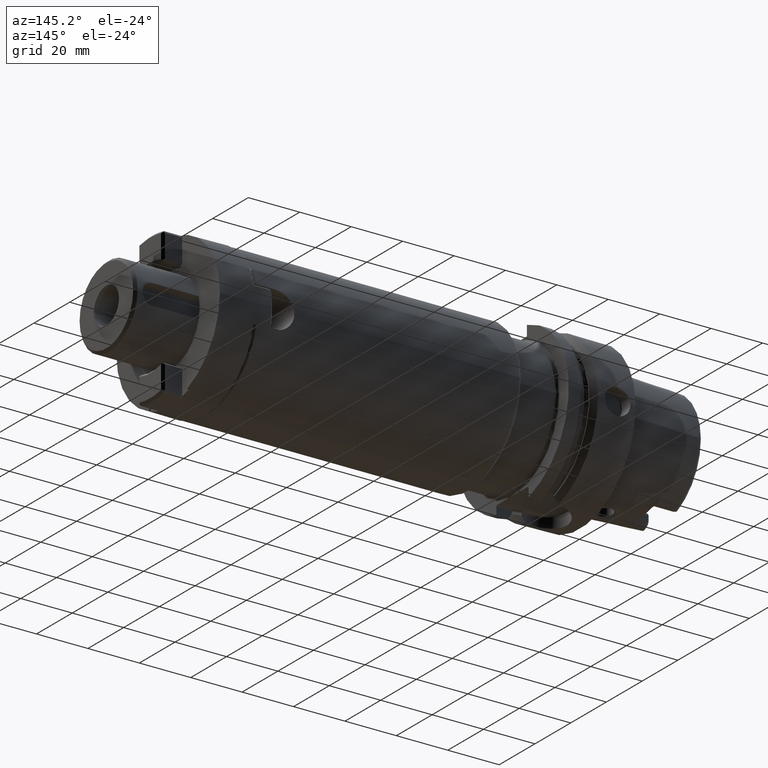
[diagram: clean part render]
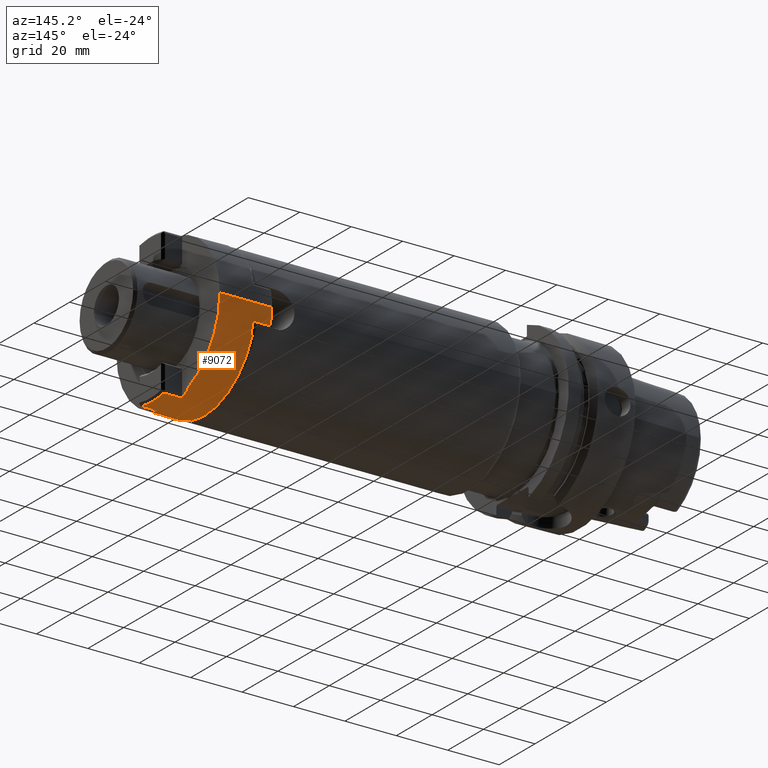
[diagram: same view with one face highlighted and labeled with its STEP entity id]
A machine part, auxiliary view. The second image highlights one B-rep face of the part: STEP entity #9072.
In plain terms, the highlighted cylindrical surface (partial cylindrical patch) has radius 29 mm, axis along (1, 0, 0).
Its self-contained STEP definition (entity closure, byte-faithful):
#7512=DIRECTION('',(1.342815094146E-12,1.E0,-1.127559325998E-12));
#7513=VECTOR('',#7512,2.006250000003E1);
#7514=CARTESIAN_POINT('',(2.899999999997E1,-6.062500000027E0,
2.262521045359E-11));
#7515=LINE('',#7514,#7513);
#7753=DIRECTION('',(6.185587793484E-14,1.E0,0.E0));
#7754=VECTOR('',#7753,6.6625E0);
#7755=CARTESIAN_POINT('',(-2.831474527892E1,-6.0625E0,6.266992882562E0));
#7756=LINE('',#7755,#7754);
#7757=CARTESIAN_POINT('',(0.E0,-6.0625E0,0.E0));
#7758=DIRECTION('',(0.E0,-1.E0,0.E0));
#7759=DIRECTION('',(-9.763705268592E-1,0.E0,2.161032028470E-1));
#7760=AXIS2_PLACEMENT_3D('',#7757,#7758,#7759);
#7762=DIRECTION('',(-1.319971477221E-12,1.E0,1.457055303772E-12));
#7763=VECTOR('',#7762,2.006250000003E1);
#7764=CARTESIAN_POINT('',(-2.899999999997E1,-6.062500000026E0,
-2.923217120667E-11));
#7765=LINE('',#7764,#7763);
#7766=CARTESIAN_POINT('',(0.E0,1.4E1,0.E0));
#7767=DIRECTION('',(0.E0,1.E0,0.E0));
#7768=DIRECTION('',(-1.E0,0.E0,0.E0));
#7769=AXIS2_PLACEMENT_3D('',#7766,#7767,#7768);
#7771=DIRECTION('',(0.E0,1.E0,0.E0));
#7772=VECTOR('',#7771,6.E-1);
#7773=CARTESIAN_POINT('',(-1.05725E1,1.34E1,2.700411531137E1));
#7774=LINE('',#7773,#7772);
#7775=DIRECTION('',(-2.286429389008E-9,-1.E0,1.033025871003E-8));
#7776=VECTOR('',#7775,6.662499859018E0);
#7777=CARTESIAN_POINT('',(-6.266992867329E0,2.006249985902E1,2.831474521009E1));
#7778=LINE('',#7777,#7776);
#7779=DIRECTION('',(2.256645089311E-9,9.999999999959E-1,-2.869937073831E-6));
#7780=VECTOR('',#7779,6.662519618770E0);
#7781=CARTESIAN_POINT('',(6.266992882562E0,1.34E1,2.831474527892E1));
#7782=LINE('',#7781,#7780);
#7783=DIRECTION('',(0.E0,1.E0,-1.184237892934E-14));
#7784=VECTOR('',#7783,6.E-1);
#7785=CARTESIAN_POINT('',(1.05725E1,1.34E1,2.700411531137E1));
#7786=LINE('',#7785,#7784);
#7787=CARTESIAN_POINT('',(0.E0,1.4E1,0.E0));
#7788=DIRECTION('',(0.E0,1.E0,0.E0));
#7789=DIRECTION('',(3.645689655172E-1,0.E0,9.311763900474E-1));
#7790=AXIS2_PLACEMENT_3D('',#7787,#7788,#7789);
#7792=CARTESIAN_POINT('',(0.E0,-6.0625E0,0.E0));
#7793=DIRECTION('',(0.E0,-1.E0,0.E0));
#7794=DIRECTION('',(1.E0,0.E0,0.E0));
#7795=AXIS2_PLACEMENT_3D('',#7792,#7793,#7794);
#7797=DIRECTION('',(0.E0,-1.E0,0.E0));
#7798=VECTOR('',#7797,6.6625E0);
#7799=CARTESIAN_POINT('',(2.831474527892E1,6.E-1,6.266992882562E0));
#7800=LINE('',#7799,#7798);
#7801=DIRECTION('',(0.E0,1.E0,0.E0));
#7802=VECTOR('',#7801,6.E-1);
#7803=CARTESIAN_POINT('',(2.700411531137E1,0.E0,1.05725E1));
#7804=LINE('',#7803,#7802);
#7805=CARTESIAN_POINT('',(0.E0,0.E0,0.E0));
#7806=DIRECTION('',(0.E0,-1.E0,0.E0));
#7807=DIRECTION('',(9.311763900474E-1,0.E0,3.645689655172E-1));
#7808=AXIS2_PLACEMENT_3D('',#7805,#7806,#7807);
#7810=DIRECTION('',(-1.184237892934E-14,1.E0,0.E0));
#7811=VECTOR('',#7810,6.E-1);
#7812=CARTESIAN_POINT('',(-2.700411531137E1,0.E0,1.05725E1));
#7813=LINE('',#7812,#7811);
#7995=CARTESIAN_POINT('',(0.E0,1.34E1,0.E0));
#7996=DIRECTION('',(0.E0,-1.E0,0.E0));
#7997=DIRECTION('',(3.645689655172E-1,0.E0,9.311763900474E-1));
#7998=AXIS2_PLACEMENT_3D('',#7995,#7996,#7997);
#8141=CARTESIAN_POINT('',(0.E0,1.34E1,0.E0));
#8142=DIRECTION('',(0.E0,-1.E0,0.E0));
#8143=DIRECTION('',(-2.161032028470E-1,0.E0,9.763705268592E-1));
#8144=AXIS2_PLACEMENT_3D('',#8141,#8142,#8143);
#8237=CARTESIAN_POINT('',(7.102470092939E-6,2.006250050754E1,
-2.878763164205E-5));
#8238=DIRECTION('',(0.E0,-1.E0,0.E0));
#8239=DIRECTION('',(2.161027599205E-1,0.E0,9.763706248934E-1));
#8240=AXIS2_PLACEMENT_3D('',#8237,#8238,#8239);
#8354=CARTESIAN_POINT('',(0.E0,6.E-1,0.E0));
#8355=DIRECTION('',(0.E0,1.E0,0.E0));
#8356=DIRECTION('',(9.311763900474E-1,0.E0,3.645689655172E-1));
#8357=AXIS2_PLACEMENT_3D('',#8354,#8355,#8356);
#8372=CARTESIAN_POINT('',(0.E0,6.E-1,0.E0));
#8373=DIRECTION('',(0.E0,1.E0,0.E0));
#8374=DIRECTION('',(-9.763705268592E-1,0.E0,2.161032028470E-1));
#8375=AXIS2_PLACEMENT_3D('',#8372,#8373,#8374);
#8420=CARTESIAN_POINT('',(2.9E1,1.4E1,0.E0));
#8422=VERTEX_POINT('',#8420);
#8425=CARTESIAN_POINT('',(-2.9E1,1.4E1,0.E0));
#8427=VERTEX_POINT('',#8425);
#8428=CARTESIAN_POINT('',(1.05725E1,1.4E1,2.700411531137E1));
#8429=VERTEX_POINT('',#8428);
#8430=CARTESIAN_POINT('',(-1.05725E1,1.4E1,2.700411531137E1));
#8431=VERTEX_POINT('',#8430);
#8456=CARTESIAN_POINT('',(1.05725E1,1.34E1,2.700411531137E1));
#8457=VERTEX_POINT('',#8456);
#8458=CARTESIAN_POINT('',(-1.05725E1,1.34E1,2.700411531137E1));
#8459=VERTEX_POINT('',#8458);
#8468=CARTESIAN_POINT('',(-2.700411531137E1,6.E-1,1.05725E1));
#8470=VERTEX_POINT('',#8468);
#8473=CARTESIAN_POINT('',(2.700411531137E1,6.E-1,1.05725E1));
#8475=VERTEX_POINT('',#8473);
#8476=CARTESIAN_POINT('',(-2.700411531137E1,0.E0,1.05725E1));
#8478=VERTEX_POINT('',#8476);
#8481=CARTESIAN_POINT('',(2.700411531137E1,0.E0,1.05725E1));
#8483=VERTEX_POINT('',#8481);
#8528=CARTESIAN_POINT('',(6.266993344859E0,2.006250050754E1,2.831474736761E1));
#8529=CARTESIAN_POINT('',(-6.266992681481E0,2.006250050754E1,2.831474437042E1));
#8530=VERTEX_POINT('',#8528);
#8531=VERTEX_POINT('',#8529);
#8568=CARTESIAN_POINT('',(6.266992882562E0,1.34E1,2.831474527892E1));
#8569=VERTEX_POINT('',#8568);
#8578=CARTESIAN_POINT('',(-6.266992882562E0,1.34E1,2.831474527892E1));
#8579=VERTEX_POINT('',#8578);
#8593=CARTESIAN_POINT('',(-2.831474527892E1,-6.0625E0,6.266992882562E0));
#8594=CARTESIAN_POINT('',(-2.831474527892E1,6.E-1,6.266992882562E0));
#8595=VERTEX_POINT('',#8593);
#8596=VERTEX_POINT('',#8594);
#8603=CARTESIAN_POINT('',(-2.9E1,-6.0625E0,0.E0));
#8605=VERTEX_POINT('',#8603);
#8627=CARTESIAN_POINT('',(2.831474527892E1,6.E-1,6.266992882562E0));
#8628=CARTESIAN_POINT('',(2.831474527892E1,-6.0625E0,6.266992882562E0));
#8629=VERTEX_POINT('',#8627);
#8630=VERTEX_POINT('',#8628);
#8633=CARTESIAN_POINT('',(2.9E1,-6.0625E0,0.E0));
#8634=VERTEX_POINT('',#8633);
#9029=CARTESIAN_POINT('',(0.E0,-6.9625E0,0.E0));
#9030=DIRECTION('',(0.E0,1.E0,0.E0));
#9031=DIRECTION('',(1.E0,0.E0,0.E0));
#9032=AXIS2_PLACEMENT_3D('',#9029,#9030,#9031);
#9033=CYLINDRICAL_SURFACE('',#9032,2.9E1);
#9034=ORIENTED_EDGE('',*,*,#9022,.F.);
#9035=ORIENTED_EDGE('',*,*,#8741,.T.);
#9036=ORIENTED_EDGE('',*,*,#8796,.T.);
#9038=ORIENTED_EDGE('',*,*,#9037,.T.);
#9040=ORIENTED_EDGE('',*,*,#9039,.F.);
#9042=ORIENTED_EDGE('',*,*,#9041,.F.);
#9044=ORIENTED_EDGE('',*,*,#9043,.F.);
#9046=ORIENTED_EDGE('',*,*,#9045,.F.);
#9048=ORIENTED_EDGE('',*,*,#9047,.F.);
#9050=ORIENTED_EDGE('',*,*,#9049,.F.);
#9052=ORIENTED_EDGE('',*,*,#9051,.T.);
#9054=ORIENTED_EDGE('',*,*,#9053,.T.);
#9055=ORIENTED_EDGE('',*,*,#8776,.F.);
#9057=ORIENTED_EDGE('',*,*,#9056,.T.);
#9059=ORIENTED_EDGE('',*,*,#9058,.F.);
#9061=ORIENTED_EDGE('',*,*,#9060,.F.);
#9063=ORIENTED_EDGE('',*,*,#9062,.F.);
#9065=ORIENTED_EDGE('',*,*,#9064,.T.);
#9067=ORIENTED_EDGE('',*,*,#9066,.T.);
#9069=ORIENTED_EDGE('',*,*,#9068,.F.);
#9070=EDGE_LOOP('',(#9034,#9035,#9036,#9038,#9040,#9042,#9044,#9046,#9048,#9050,
#9052,#9054,#9055,#9057,#9059,#9061,#9063,#9065,#9067,#9069));
#9071=FACE_OUTER_BOUND('',#9070,.F.);
#9072=ADVANCED_FACE('',(#9071),#9033,.T.);
#7761=CIRCLE('',#7760,2.9E1);
#7770=CIRCLE('',#7769,2.9E1);
#7791=CIRCLE('',#7790,2.9E1);
#7796=CIRCLE('',#7795,2.9E1);
#7809=CIRCLE('',#7808,2.9E1);
#7999=CIRCLE('',#7998,2.9E1);
#8145=CIRCLE('',#8144,2.9E1);
#8241=CIRCLE('',#8240,2.900002871178E1);
#8358=CIRCLE('',#8357,2.9E1);
#8376=CIRCLE('',#8375,2.9E1);
#8741=EDGE_CURVE('',#8595,#8605,#7761,.T.);
#8776=EDGE_CURVE('',#8634,#8422,#7515,.T.);
#8796=EDGE_CURVE('',#8605,#8427,#7765,.T.);
#9022=EDGE_CURVE('',#8595,#8596,#7756,.T.);
#9037=EDGE_CURVE('',#8427,#8431,#7770,.T.);
#9039=EDGE_CURVE('',#8459,#8431,#7774,.T.);
#9041=EDGE_CURVE('',#8579,#8459,#8145,.T.);
#9043=EDGE_CURVE('',#8531,#8579,#7778,.T.);
#9045=EDGE_CURVE('',#8530,#8531,#8241,.T.);
#9047=EDGE_CURVE('',#8569,#8530,#7782,.T.);
#9049=EDGE_CURVE('',#8457,#8569,#7999,.T.);
#9051=EDGE_CURVE('',#8457,#8429,#7786,.T.);
#9053=EDGE_CURVE('',#8429,#8422,#7791,.T.);
#9056=EDGE_CURVE('',#8634,#8630,#7796,.T.);
#9058=EDGE_CURVE('',#8629,#8630,#7800,.T.);
#9060=EDGE_CURVE('',#8475,#8629,#8358,.T.);
#9062=EDGE_CURVE('',#8483,#8475,#7804,.T.);
#9064=EDGE_CURVE('',#8483,#8478,#7809,.T.);
#9066=EDGE_CURVE('',#8478,#8470,#7813,.T.);
#9068=EDGE_CURVE('',#8596,#8470,#8376,.T.);